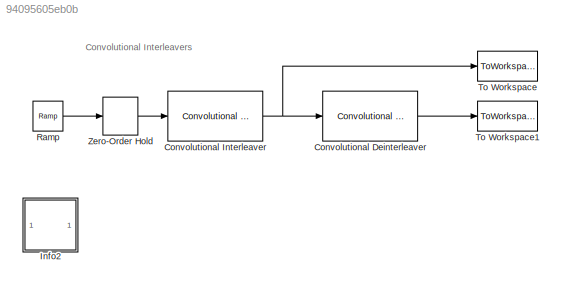
MODEL slx_94095605eb0b
KIND model
BLOCK [Reference] Convolutional Deinterleaver  REF=commcnvintrlv2/Convolutional
Deinterleaver
  B = 2
  N = 3
  Ports = [1, 1]
  SourceBlock = commcnvintrlv2/Convolutional\nDeinterleaver
  SourceType = Convolutional Deinterleaver
  ic = [-1 -2 -3]'
BLOCK [Reference] Convolutional Interleaver  REF=commcnvintrlv2/Convolutional
Interleaver
  B = 2
  N = 3
  Ports = [1, 1]
  SourceBlock = commcnvintrlv2/Convolutional\nInterleaver
  SourceType = Convolutional Interleaver
  ic = [-1 -2 -3]'
BLOCK [SubSystem] Info2
  AncestorBlock = commblksprivate/Info
  OpenFcn = helpview([docroot '/toolbox/comm/comm.map'], 'doc_convinterleaver')
  Ports = []
  RequestExecContextInheritance = off
BLOCK [Reference] Ramp  REF=simulink/Sources/Ramp
  Ports = [0, 1]
  SourceBlock = simulink/Sources/Ramp
  SourceType = Ramp
  VectorParams1D = on
  X0 = 0
  slope = 1
  start = 0
BLOCK [ToWorkspace] To Workspace
  MaxDataPoints = inf
  Ports = [1]
  SampleTime = -1
  VariableName = interleaved
BLOCK [ToWorkspace] To Workspace1
  MaxDataPoints = inf
  Ports = [1]
  SampleTime = -1
  VariableName = restored
BLOCK [ZeroOrderHold] Zero-Order Hold
ANNOTATION (root): Convolutional Interleavers
LINE Convolutional Deinterleaver:1 -> To Workspace1:1
NET Convolutional Interleaver:1 -> Convolutional Deinterleaver:1, To Workspace:1
LINE Ramp:1 -> Zero-Order Hold:1
LINE Zero-Order Hold:1 -> Convolutional Interleaver:1
note: NET lines group one-source signal fan-out (src -> all destinations, sorted); 1:1 wires keep LINE
